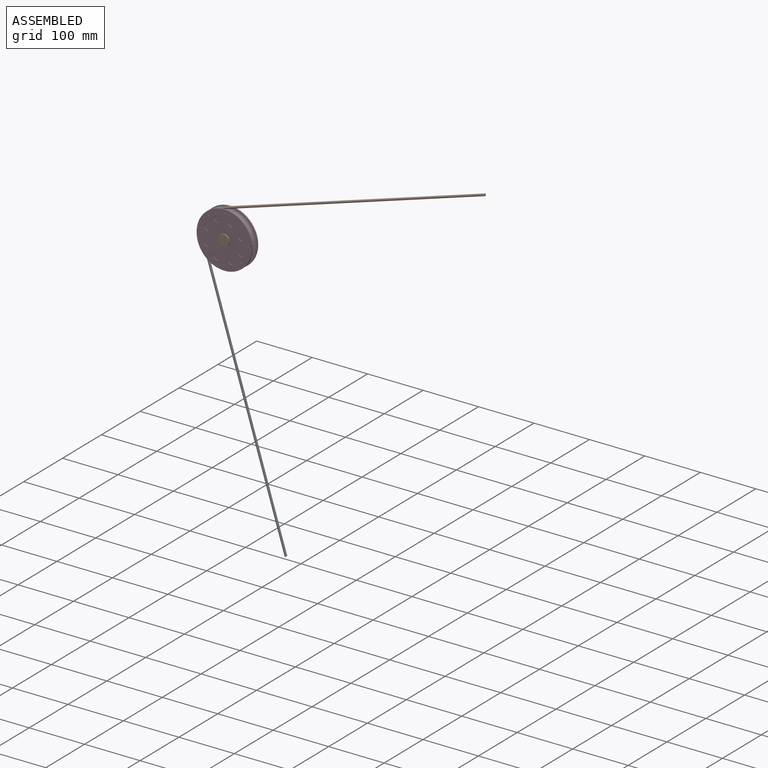
[diagram: assembled view]
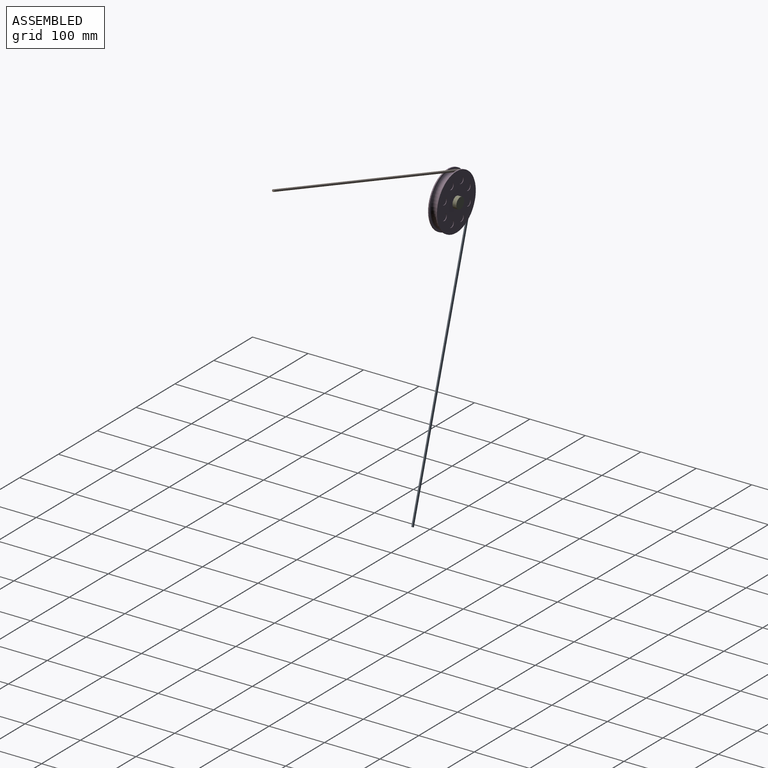
[diagram: assembled view, second angle]
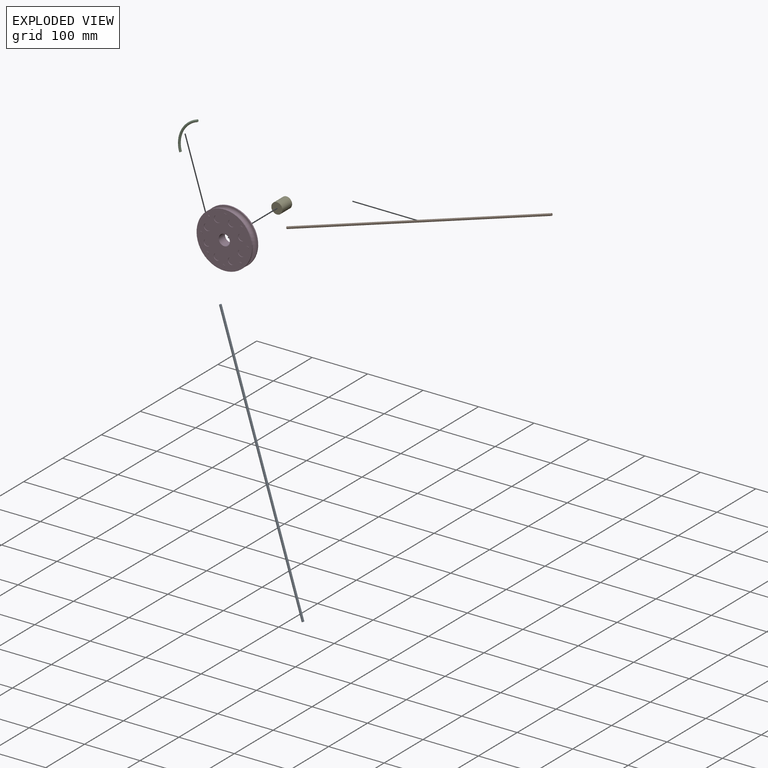
[diagram: exploded view]
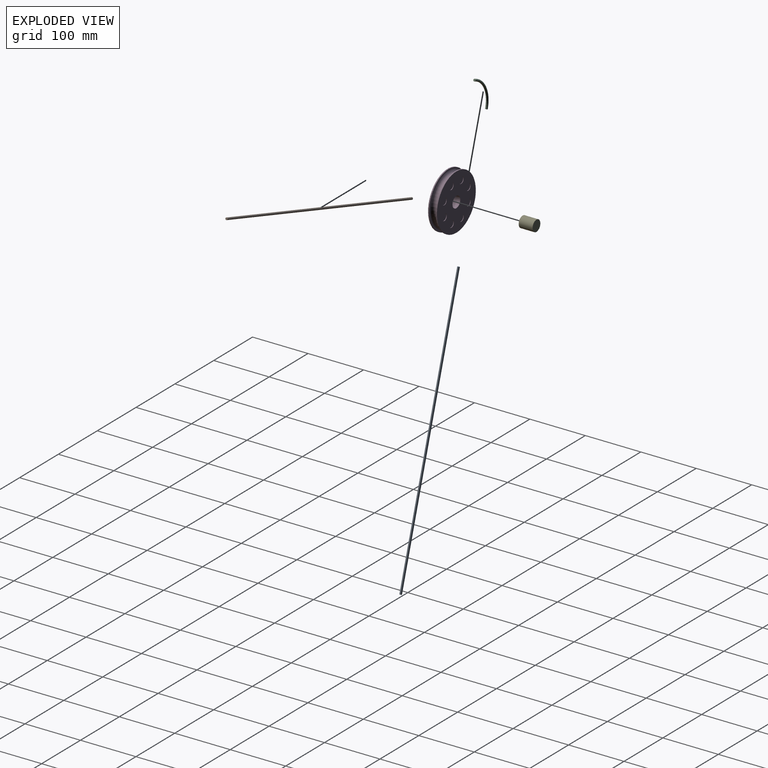
[diagram: exploded view, second angle]
ASSEMBLY  parts=5 mates=4
PART A: 3 faces, bbox 4x4x500 mm
  f0: plane 4x4mm, normal (0,0,1), area 12.6mm2, adj f2
  f1: plane 4x4mm, normal (0,0,-1), area 12.6mm2, adj f2
  f2: cylinder r=2mm len=500mm, axis (0,0,-1), area 6283.2mm2, adj f0,f1
PART B: 3 faces, bbox 500x4x4 mm
  f0: plane 4x4mm, normal (1,0,0), area 12.6mm2, adj f2
  f1: plane 4x4mm, normal (-1,0,0), area 12.6mm2, adj f2
  f2: cylinder r=2mm len=500mm, axis (-1,0,0), area 6283.2mm2, adj f0,f1
PART C: 3 faces, bbox 53x4x53 mm
  f0: plane 4x4mm, normal (1,0,0), area 12.6mm2, adj f2
  f1: plane 4x4mm, normal (0,0,-1), area 12.6mm2, adj f2
  f2: torus R=47mm, axis (0,-1,0), area 927.7mm2, adj f0,f1
PART D: 56 faces, bbox 113.1x16.5x113.1 mm
  f0: cylinder r=50mm len=100mm, axis (0,1,0), area 628.3mm2, adj f3,f5
  f1: cylinder r=50mm len=100mm, axis (0,1,0), area 628.3mm2, adj f4,f6
  f2: cylinder r=10mm len=20mm, axis (0,1,0), area 1005.3mm2, adj f3,f4
  f3: plane 100x100mm, normal (0,-1,0), area 6490.3mm2, adj f0,f2,f8,f10,f12,f14,f16,f18
  f4: plane 100x100mm, normal (0,1,0), area 6631.7mm2, adj f1,f2,f24,f26,f28,f30,f32,f34
  f5: plane 100x100mm, normal (0,1,0), area 615.8mm2, adj f0,f7
  f6: plane 100x100mm, normal (0,-1,0), area 615.8mm2, adj f1,f7
  f7: torus R=48mm, axis (0,-1,0), area 5232.5mm2, adj f5,f6
  f8: cylinder r=6.01mm len=12.02mm, axis (0,-1,0), area 37.8mm2, adj f3,f9
  f9: plane 12.02x12.02mm, normal (0,-1,0), area 113.5mm2, adj f8
  f10: cylinder r=6.01mm len=12.02mm, axis (0,-1,0), area 37.8mm2, adj f3,f11
  f11: plane 12.02x12.02mm, normal (0,-1,0), area 113.5mm2, adj f10
  f12: cylinder r=6.01mm len=12.02mm, axis (0,-1,0), area 37.8mm2, adj f3,f13
  f13: plane 12.02x12.02mm, normal (0,-1,0), area 113.5mm2, adj f12
  f14: cylinder r=6.01mm len=12.02mm, axis (0,-1,0), area 37.8mm2, adj f3,f15
  f15: plane 12.02x12.02mm, normal (0,-1,0), area 113.5mm2, adj f14
  f16: cylinder r=6.01mm len=12.02mm, axis (0,-1,0), area 37.8mm2, adj f3,f17
  f17: plane 12.02x12.02mm, normal (0,-1,0), area 113.5mm2, adj f16
  f18: cylinder r=6.01mm len=12.02mm, axis (0,-1,0), area 37.8mm2, adj f3,f19
  f19: plane 12.02x12.02mm, normal (0,-1,0), area 113.5mm2, adj f18
  f20: cylinder r=6.01mm len=12.02mm, axis (0,-1,0), area 37.8mm2, adj f3,f21
  f21: plane 12.02x12.02mm, normal (0,-1,0), area 113.5mm2, adj f20
  f22: cylinder r=6.01mm len=12.02mm, axis (0,-1,0), area 37.8mm2, adj f3,f23
  f23: plane 12.02x12.02mm, normal (0,-1,0), area 113.5mm2, adj f22
  f24: cylinder r=6.01mm len=12.02mm, axis (0,1,0), area 37.8mm2, adj f4,f25
  f25: plane 12.02x12.02mm, normal (0,1,0), area 113.5mm2, adj f24
  f26: cylinder r=6.01mm len=12.02mm, axis (0,1,0), area 37.8mm2, adj f4,f27
  f27: plane 12.02x12.02mm, normal (0,1,0), area 113.5mm2, adj f26
  f28: cylinder r=6.01mm len=12.02mm, axis (0,1,0), area 37.8mm2, adj f4,f29
  f29: plane 12.02x12.02mm, normal (0,1,0), area 113.5mm2, adj f28
  f30: cylinder r=6.01mm len=12.02mm, axis (0,1,0), area 37.8mm2, adj f4,f31
  f31: plane 12.02x12.02mm, normal (0,1,0), area 113.5mm2, adj f30
  f32: cylinder r=6.01mm len=12.02mm, axis (0,1,0), area 37.8mm2, adj f4,f33
  f33: plane 12.02x12.02mm, normal (0,1,0), area 113.5mm2, adj f32
  f34: cylinder r=6.01mm len=12.02mm, axis (0,1,0), area 37.8mm2, adj f4,f35
  f35: plane 12.02x12.02mm, normal (0,1,0), area 113.5mm2, adj f34
  f36: cylinder r=6.01mm len=12.02mm, axis (0,1,0), area 37.8mm2, adj f4,f37
  f37: plane 12.02x12.02mm, normal (0,1,0), area 113.5mm2, adj f36
  f38: cylinder r=6.01mm len=12.02mm, axis (0,1,0), area 37.8mm2, adj f4,f39
  f39: plane 12.02x12.02mm, normal (0,1,0), area 113.5mm2, adj f38
  f40: cylinder r=2.37mm len=4.74mm, axis (0,1,0), area 7.5mm2, adj f3,f41
  f41: plane 4.74x4.74mm, normal (0,-1,0), area 17.7mm2, adj f40
  f42: cylinder r=2.37mm len=4.74mm, axis (0,1,0), area 7.5mm2, adj f3,f43
  f43: plane 4.74x4.74mm, normal (0,-1,0), area 17.7mm2, adj f42
  f44: cylinder r=2.37mm len=4.74mm, axis (0,1,0), area 7.5mm2, adj f3,f45
  f45: plane 4.74x4.74mm, normal (0,-1,0), area 17.7mm2, adj f44
  f46: cylinder r=2.37mm len=4.74mm, axis (0,1,0), area 7.5mm2, adj f3,f47
  f47: plane 4.74x4.74mm, normal (0,-1,0), area 17.7mm2, adj f46
  f48: cylinder r=2.37mm len=4.74mm, axis (0,1,0), area 7.5mm2, adj f3,f49
  f49: plane 4.74x4.74mm, normal (0,-1,0), area 17.7mm2, adj f48
  f50: cylinder r=2.37mm len=4.74mm, axis (0,1,0), area 7.5mm2, adj f3,f51
  f51: plane 4.74x4.74mm, normal (0,-1,0), area 17.7mm2, adj f50
  f52: cylinder r=2.37mm len=4.74mm, axis (0,1,0), area 7.5mm2, adj f3,f53
  f53: plane 4.74x4.74mm, normal (0,-1,0), area 17.7mm2, adj f52
  f54: cylinder r=2.37mm len=4.74mm, axis (0,1,0), area 7.5mm2, adj f3,f55
  f55: plane 4.74x4.74mm, normal (0,-1,0), area 17.7mm2, adj f54
PART E: 3 faces, bbox 20x25x20 mm
  f0: cylinder r=10mm len=25mm, axis (0,1,0), area 1570.8mm2, adj f1,f2
  f1: plane 20x20mm, normal (0,-1,0), area 314.2mm2, adj f0
  f2: plane 20x20mm, normal (0,1,0), area 314.2mm2, adj f0
PLACE A rot(axis=(0,-1,0),17.3deg) t=(0.41,12,0.48)mm
PLACE B rot(axis=(0,-1,0),17.3deg) t=(0.41,12,0.48)mm
PLACE C rot(axis=(0,-1,0),17.3deg) t=(0.41,12,0.48)mm
PLACE D rot(axis=(0,-1,0),22.1deg) t=(0.41,10,0.48)mm
PLACE E t=(0.41,12.5,0.48)mm fixed
MATE revolute E.f0 <-> D.f2  axis (0,-1,0) through (0.41,0,0.48)mm
MATE revolute C.f2 <-> D.f2  axis (0,-1,0) through (0.41,10,0.48)mm
MATE fastened C.f1 <-> A.f2  axis (0.3,0,-0.95) through (-44.45,12,-13.53)mm
MATE fastened C.f0 <-> B.f2  axis (0.95,0,0.3) through (-13.6,12,45.34)mm
